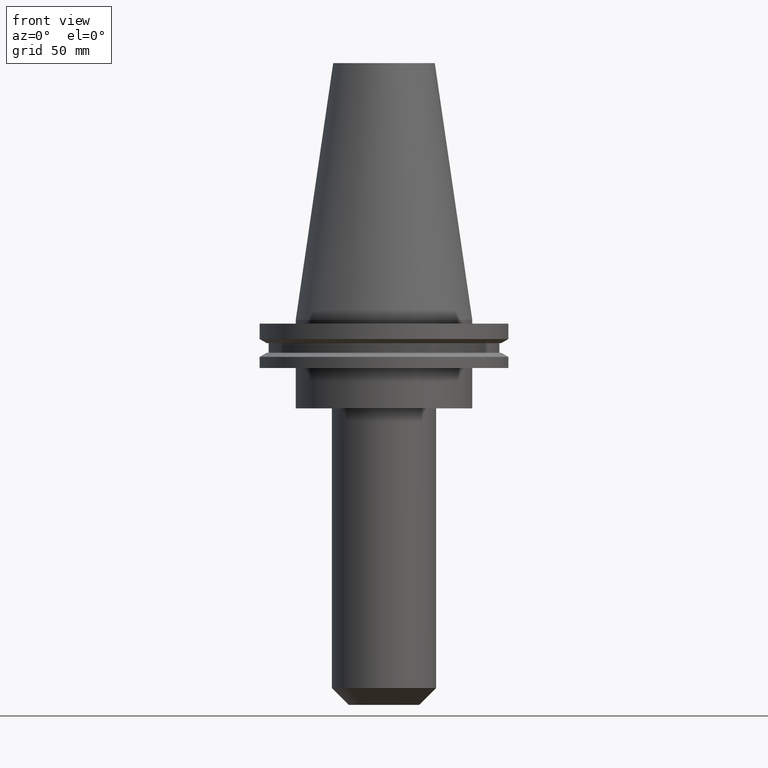
[diagram: clean part render]
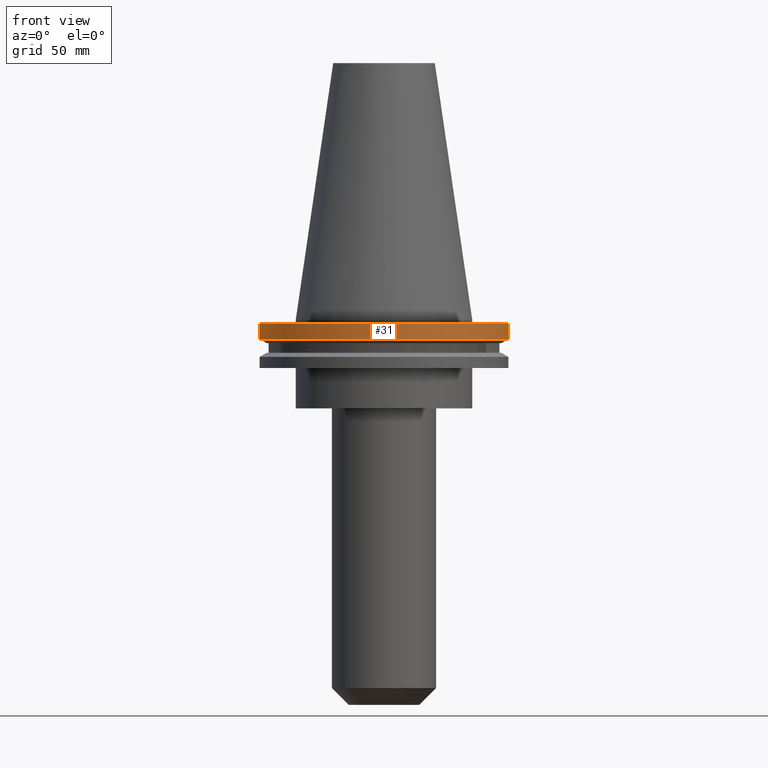
[diagram: same view with one face highlighted and labeled with its STEP entity id]
A machine part, front view. The second image highlights one B-rep face of the part: STEP entity #31.
In plain terms, the highlighted cylindrical surface (partial cylindrical patch) has radius 49.215 mm, axis along (-0, -0, 1).
Its self-contained STEP definition (entity closure, byte-faithful):
#15 = EDGE_CURVE ( 'NONE', #353, #425, #183, .T. ) ;
#31 = ADVANCED_FACE ( 'NONE', ( #56 ), #853, .T. ) ;
#32 = DIRECTION ( 'NONE',  ( -0.000000000000000000, -0.000000000000000000, 1.000000000000000000 ) ) ;
#56 = FACE_OUTER_BOUND ( 'NONE', #243, .T. ) ;
#80 = CIRCLE ( 'NONE', #405, 49.21500000000000341 ) ;
#85 = CARTESIAN_POINT ( 'NONE',  ( 49.21500000000000341, 0.000000000000000000, -7.602389855251287187 ) ) ;
#98 = VERTEX_POINT ( 'NONE', #457 ) ;
#108 = VERTEX_POINT ( 'NONE', #765 ) ;
#125 = ORIENTED_EDGE ( 'NONE', *, *, #15, .T. ) ;
#162 = CARTESIAN_POINT ( 'NONE',  ( 0.000000000000000000, 0.000000000000000000, -1.499999999999987566 ) ) ;
#183 = LINE ( 'NONE', #248, #768 ) ;
#242 = ORIENTED_EDGE ( 'NONE', *, *, #340, .T. ) ;
#243 = EDGE_LOOP ( 'NONE', ( #369, #242, #125, #491 ) ) ;
#248 = CARTESIAN_POINT ( 'NONE',  ( 49.21499999999999631, 0.000000000000000000, 101.5999999999999943 ) ) ;
#266 = CARTESIAN_POINT ( 'NONE',  ( 0.000000000000000000, 0.000000000000000000, 101.5999999999999943 ) ) ;
#286 = CARTESIAN_POINT ( 'NONE',  ( -49.21499999999999631, 6.027099222003697826E-15, 101.5999999999999943 ) ) ;
#316 = DIRECTION ( 'NONE',  ( -0.000000000000000000, -0.000000000000000000, 1.000000000000000000 ) ) ;
#322 = DIRECTION ( 'NONE',  ( -0.000000000000000000, -0.000000000000000000, 1.000000000000000000 ) ) ;
#331 = EDGE_CURVE ( 'NONE', #108, #98, #359, .T. ) ;
#340 = EDGE_CURVE ( 'NONE', #108, #353, #80, .T. ) ;
#353 = VERTEX_POINT ( 'NONE', #85 ) ;
#359 = LINE ( 'NONE', #286, #430 ) ;
#363 = CARTESIAN_POINT ( 'NONE',  ( 0.000000000000000000, 0.000000000000000000, -7.602389855251287187 ) ) ;
#369 = ORIENTED_EDGE ( 'NONE', *, *, #331, .F. ) ;
#405 = AXIS2_PLACEMENT_3D ( 'NONE', #363, #681, #752 ) ;
#425 = VERTEX_POINT ( 'NONE', #618 ) ;
#430 = VECTOR ( 'NONE', #32, 1000.000000000000000 ) ;
#432 = DIRECTION ( 'NONE',  ( 1.000000000000000000, 0.000000000000000000, 0.000000000000000000 ) ) ;
#450 = DIRECTION ( 'NONE',  ( 1.000000000000000000, 0.000000000000000000, 0.000000000000000000 ) ) ;
#457 = CARTESIAN_POINT ( 'NONE',  ( -49.21499999999999631, 6.027099222003697826E-15, -1.499999999999987566 ) ) ;
#491 = ORIENTED_EDGE ( 'NONE', *, *, #811, .F. ) ;
#569 = AXIS2_PLACEMENT_3D ( 'NONE', #266, #316, #450 ) ;
#618 = CARTESIAN_POINT ( 'NONE',  ( 49.21499999999999631, 0.000000000000000000, -1.499999999999987566 ) ) ;
#681 = DIRECTION ( 'NONE',  ( -0.000000000000000000, -0.000000000000000000, 1.000000000000000000 ) ) ;
#682 = DIRECTION ( 'NONE',  ( -0.000000000000000000, -0.000000000000000000, 1.000000000000000000 ) ) ;
#752 = DIRECTION ( 'NONE',  ( 1.000000000000000000, 0.000000000000000000, 0.000000000000000000 ) ) ;
#765 = CARTESIAN_POINT ( 'NONE',  ( -49.21500000000000341, 6.027099222003699404E-15, -7.602389855251287187 ) ) ;
#768 = VECTOR ( 'NONE', #322, 1000.000000000000000 ) ;
#803 = AXIS2_PLACEMENT_3D ( 'NONE', #162, #682, #432 ) ;
#811 = EDGE_CURVE ( 'NONE', #98, #425, #852, .T. ) ;
#852 = CIRCLE ( 'NONE', #803, 49.21499999999999631 ) ;
#853 = CYLINDRICAL_SURFACE ( 'NONE', #569, 49.21499999999999631 ) ;